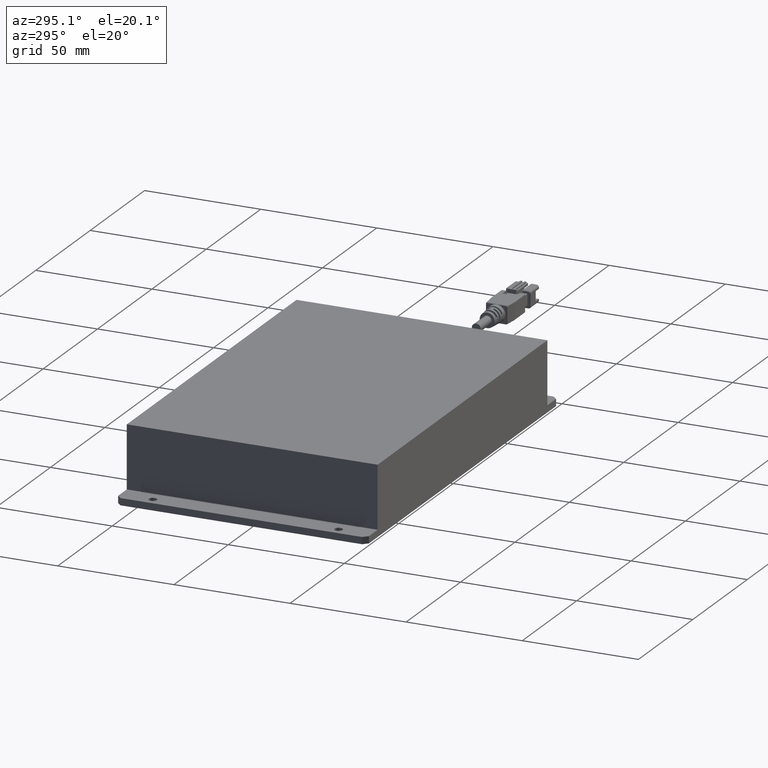
[diagram: clean part render]
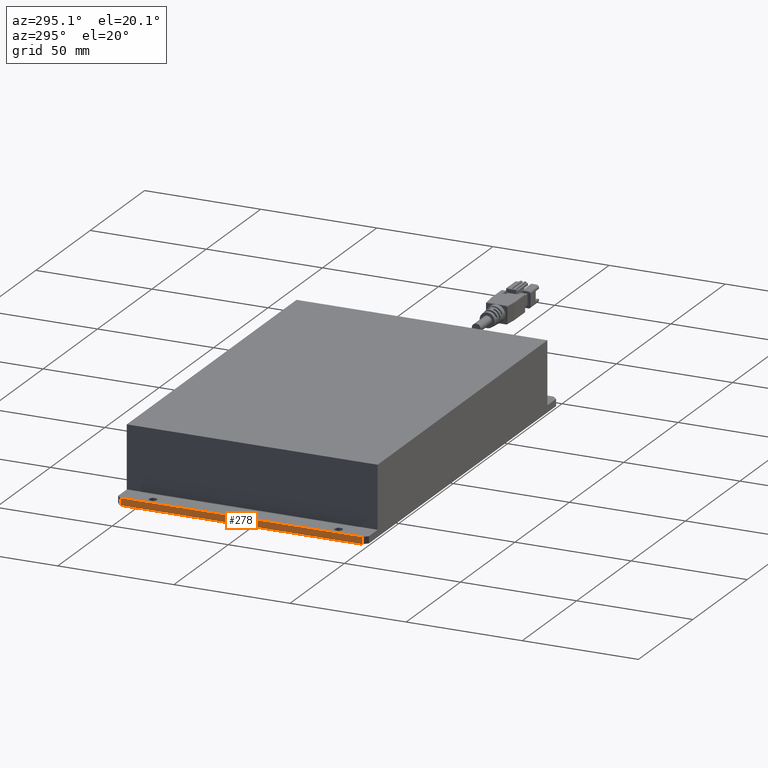
[diagram: same view with one face highlighted and labeled with its STEP entity id]
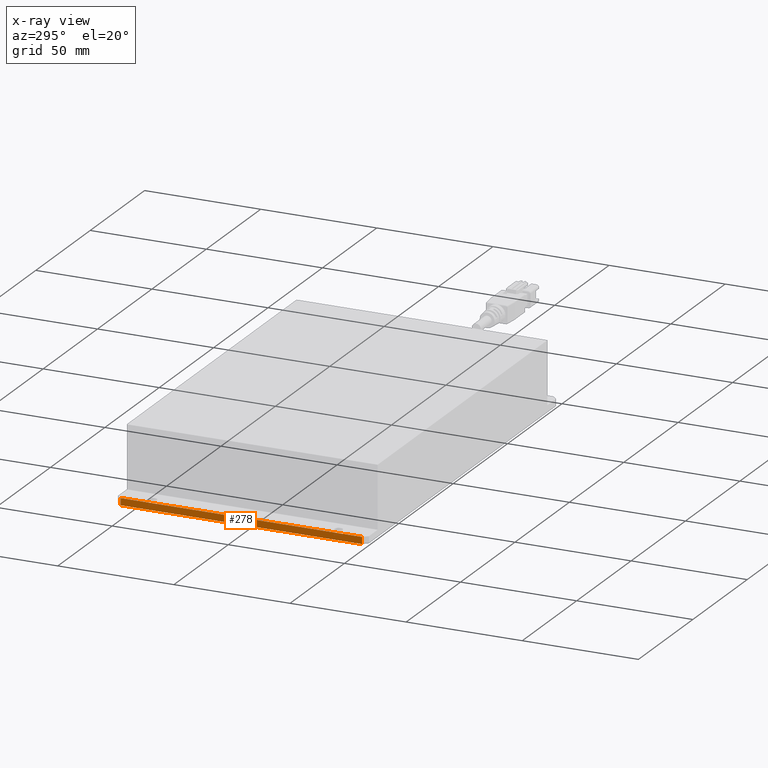
[diagram: x-ray of the same camera — body ghosted, the highlighted face saturated]
A machine part, auxiliary view. The second image highlights one B-rep face of the part: STEP entity #278.
The next image is the same camera in x-ray: the body ghosted, the highlighted face saturated — about 0% of this face is hidden behind the body in this view.
In plain terms, the highlighted planar face has unit normal (-1, 0, 0).
Its self-contained STEP definition (entity closure, byte-faithful):
#278=ADVANCED_FACE('0:8864',(#689),#690,.T.);
#689=FACE_OUTER_BOUND('',#1252,.T.);
#690=PLANE('',#1253);
#1252=EDGE_LOOP('',(#2254,#2255,#2256,#2257));
#1253=AXIS2_PLACEMENT_3D('',#2258,#2259,#2260);
#2254=ORIENTED_EDGE('',*,*,#3726,.T.);
#2255=ORIENTED_EDGE('',*,*,#3741,.T.);
#2256=ORIENTED_EDGE('',*,*,#3734,.F.);
#2257=ORIENTED_EDGE('',*,*,#3737,.T.);
#2258=CARTESIAN_POINT('',(-0.088,-0.054,0.0));
#2259=DIRECTION('',(-1.0,0.0,0.0));
#2260=DIRECTION('',(0.0,0.0,1.0));
#3726=EDGE_CURVE('0:8999',#4363,#4361,#4364,.F.);
#3734=EDGE_CURVE('0:8981',#4375,#4377,#4378,.F.);
#3737=EDGE_CURVE('0:8963',#4375,#4363,#4381,.T.);
#3741=EDGE_CURVE('0:8957',#4361,#4377,#4385,.T.);
#4361=VERTEX_POINT('',#5278);
#4363=VERTEX_POINT('',#5281);
#4364=LINE('',#5282,#5283);
#4375=VERTEX_POINT('',#5297);
#4377=VERTEX_POINT('',#5300);
#4378=LINE('',#5301,#5302);
#4381=LINE('',#5306,#5307);
#4385=LINE('',#5313,#5314);
#5278=CARTESIAN_POINT('',(-0.088,-0.052,0.0));
#5281=CARTESIAN_POINT('',(-0.088,0.052,0.0));
#5282=CARTESIAN_POINT('',(-0.088,-0.054,0.0));
#5283=VECTOR('',#6596,1.0);
#5297=CARTESIAN_POINT('',(-0.088,0.052,0.003));
#5300=CARTESIAN_POINT('',(-0.088,-0.052,0.003));
#5301=CARTESIAN_POINT('',(-0.088,-0.054,0.003));
#5302=VECTOR('',#6607,1.0);
#5306=CARTESIAN_POINT('',(-0.088,0.052,0.0));
#5307=VECTOR('',#6609,1.0);
#5313=CARTESIAN_POINT('',(-0.088,-0.052,0.0));
#5314=VECTOR('',#6612,1.0);
#6596=DIRECTION('',(0.0,1.0,0.0));
#6607=DIRECTION('',(0.0,1.0,0.0));
#6609=DIRECTION('',(0.0,0.0,-1.0));
#6612=DIRECTION('',(0.0,0.0,1.0));